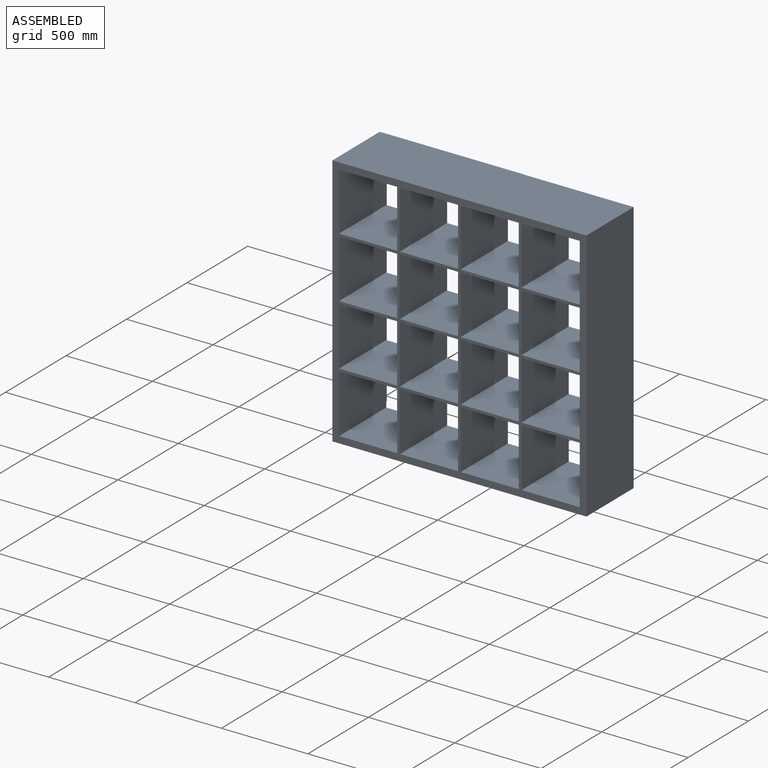
[diagram: assembled view]
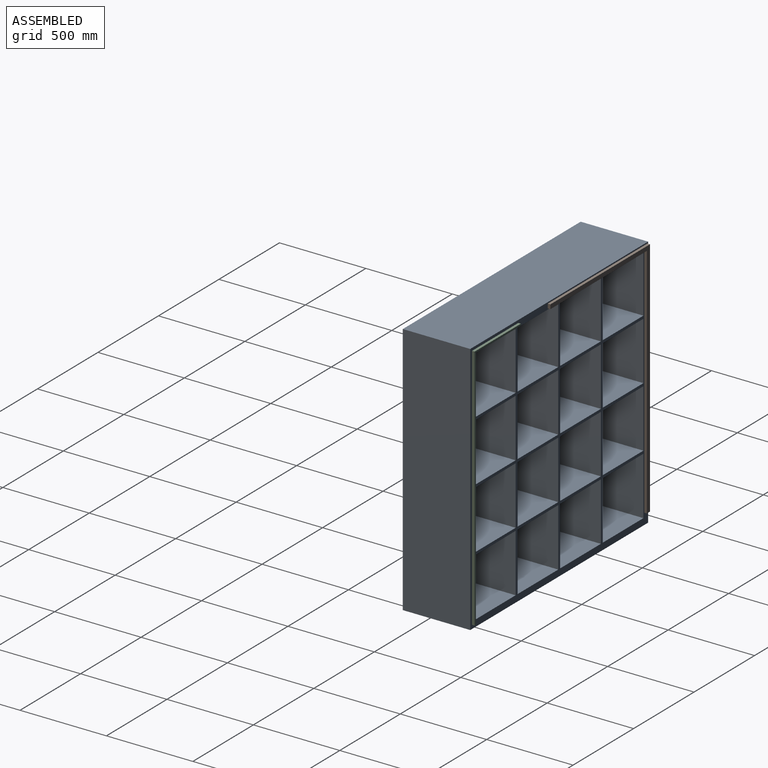
[diagram: assembled view, second angle]
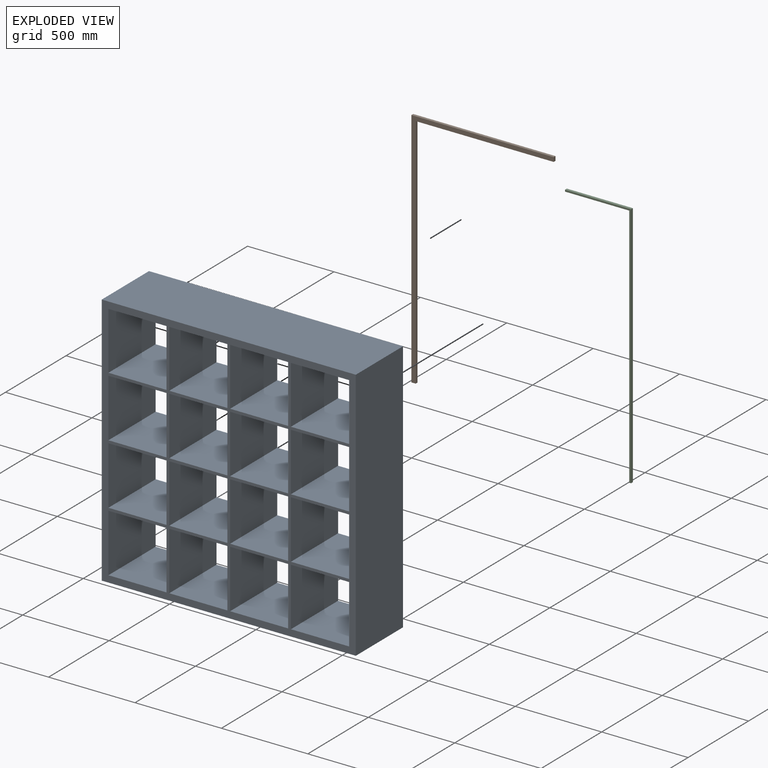
[diagram: exploded view]
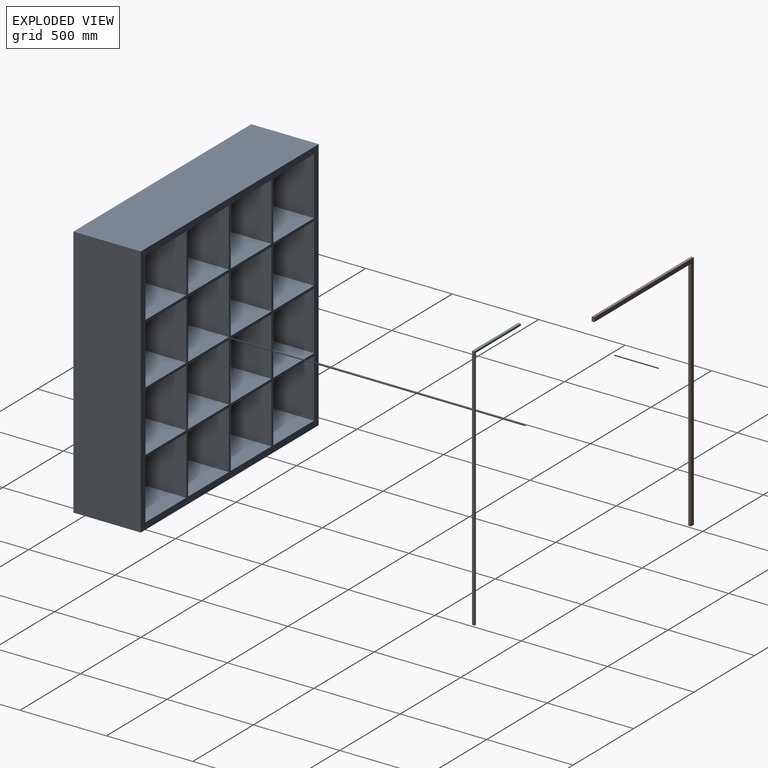
[diagram: exploded view, second angle]
ASSEMBLY  parts=3 mates=2
PART A: 70 faces, bbox 1470x390x1470 mm
  f0: plane 390x336mm, normal (0,0,1), area 131040mm2, adj f1,f67,f68,f69
  f1: plane 390x337mm, normal (1,0,0), area 131430mm2, adj f0,f2,f68,f69
  f2: plane 390x336mm, normal (0,0,-1), area 131040mm2, adj f1,f67,f68,f69
  f3: plane 390x336mm, normal (0,0,1), area 131040mm2, adj f4,f51,f68,f69
  f4: plane 390x337mm, normal (1,0,0), area 131430mm2, adj f3,f5,f68,f69
  f5: plane 390x336mm, normal (0,0,-1), area 131040mm2, adj f4,f51,f68,f69
  f6: plane 390x337mm, normal (1,0,0), area 131430mm2, adj f7,f52,f68,f69
  f7: plane 390x336mm, normal (0,0,-1), area 131040mm2, adj f6,f8,f68,f69
  f8: plane 390x337mm, normal (-1,0,0), area 131430mm2, adj f7,f52,f68,f69
  f9: plane 390x337mm, normal (1,0,0), area 131430mm2, adj f10,f53,f68,f69
  f10: plane 390x336mm, normal (0,0,-1), area 131040mm2, adj f9,f11,f68,f69
  f11: plane 390x337mm, normal (-1,0,0), area 131430mm2, adj f10,f53,f68,f69
  f12: plane 1470x390mm, normal (0,0,1), area 573300mm2, adj f13,f54,f68,f69
  f13: plane 1470x390mm, normal (-1,0,0), area 573300mm2, adj f12,f14,f68,f69
  f14: plane 1470x390mm, normal (0,0,-1), area 573300mm2, adj f13,f54,f68,f69
  f15: plane 390x336mm, normal (0,0,1), area 131040mm2, adj f16,f55,f68,f69
  f16: plane 390x334mm, normal (1,0,0), area 130260mm2, adj f15,f17,f68,f69
  f17: plane 390x336mm, normal (0,0,-1), area 131040mm2, adj f16,f55,f68,f69
  f18: plane 390x337mm, normal (0,0,-1), area 131430mm2, adj f19,f56,f68,f69
  f19: plane 390x337mm, normal (-1,0,0), area 131430mm2, adj f18,f20,f68,f69
  f20: plane 390x337mm, normal (0,0,1), area 131430mm2, adj f19,f56,f68,f69
  f21: plane 390x337mm, normal (0,0,-1), area 131430mm2, adj f22,f57,f68,f69
  f22: plane 390x337mm, normal (-1,0,0), area 131430mm2, adj f21,f23,f68,f69
  f23: plane 390x337mm, normal (0,0,1), area 131430mm2, adj f22,f57,f68,f69
  f24: plane 390x337mm, normal (0,0,-1), area 131430mm2, adj f25,f58,f68,f69
  f25: plane 390x337mm, normal (-1,0,0), area 131430mm2, adj f24,f26,f68,f69
  f26: plane 390x337mm, normal (0,0,1), area 131430mm2, adj f25,f58,f68,f69
  f27: plane 390x334mm, normal (1,0,0), area 130260mm2, adj f28,f59,f68,f69
  f28: plane 390x337mm, normal (0,0,-1), area 131430mm2, adj f27,f29,f68,f69
  f29: plane 390x334mm, normal (-1,0,0), area 130260mm2, adj f28,f59,f68,f69
  f30: plane 390x334mm, normal (1,0,0), area 130260mm2, adj f31,f60,f68,f69
  f31: plane 390x336mm, normal (0,0,-1), area 131040mm2, adj f30,f32,f68,f69
  f32: plane 390x334mm, normal (-1,0,0), area 130260mm2, adj f31,f60,f68,f69
  f33: plane 390x334mm, normal (1,0,0), area 130260mm2, adj f34,f61,f68,f69
  f34: plane 390x336mm, normal (0,0,-1), area 131040mm2, adj f33,f35,f68,f69
  f35: plane 390x334mm, normal (-1,0,0), area 130260mm2, adj f34,f61,f68,f69
  f36: plane 390x337mm, normal (1,0,0), area 131430mm2, adj f37,f62,f68,f69
  f37: plane 390x336mm, normal (0,0,-1), area 131040mm2, adj f36,f38,f68,f69
  f38: plane 390x337mm, normal (-1,0,0), area 131430mm2, adj f37,f62,f68,f69
  f39: plane 390x337mm, normal (1,0,0), area 131430mm2, adj f40,f63,f68,f69
  f40: plane 390x336mm, normal (0,0,-1), area 131040mm2, adj f39,f41,f68,f69
  f41: plane 390x337mm, normal (-1,0,0), area 131430mm2, adj f40,f63,f68,f69
  f42: plane 390x337mm, normal (1,0,0), area 131430mm2, adj f43,f64,f68,f69
  f43: plane 390x336mm, normal (0,0,-1), area 131040mm2, adj f42,f44,f68,f69
  f44: plane 390x337mm, normal (-1,0,0), area 131430mm2, adj f43,f64,f68,f69
  f45: plane 390x336mm, normal (0,0,1), area 131040mm2, adj f46,f65,f68,f69
  f46: plane 390x337mm, normal (1,0,0), area 131430mm2, adj f45,f47,f68,f69
  f47: plane 390x336mm, normal (0,0,-1), area 131040mm2, adj f46,f65,f68,f69
  f48: plane 390x336mm, normal (0,0,1), area 131040mm2, adj f49,f66,f68,f69
  f49: plane 390x337mm, normal (1,0,0), area 131430mm2, adj f48,f50,f68,f69
  f50: plane 390x336mm, normal (0,0,-1), area 131040mm2, adj f49,f66,f68,f69
  f51: plane 390x337mm, normal (-1,0,0), area 131430mm2, adj f3,f5,f68,f69
  f52: plane 390x336mm, normal (0,0,1), area 131040mm2, adj f6,f8,f68,f69
  f53: plane 390x336mm, normal (0,0,1), area 131040mm2, adj f9,f11,f68,f69
  f54: plane 1470x390mm, normal (1,0,0), area 573300mm2, adj f12,f14,f68,f69
  f55: plane 390x334mm, normal (-1,0,0), area 130260mm2, adj f15,f17,f68,f69
  f56: plane 390x337mm, normal (1,0,0), area 131430mm2, adj f18,f20,f68,f69
  f57: plane 390x337mm, normal (1,0,0), area 131430mm2, adj f21,f23,f68,f69
  f58: plane 390x337mm, normal (1,0,0), area 131430mm2, adj f24,f26,f68,f69
  f59: plane 390x337mm, normal (0,0,1), area 131430mm2, adj f27,f29,f68,f69
  f60: plane 390x336mm, normal (0,0,1), area 131040mm2, adj f30,f32,f68,f69
  f61: plane 390x336mm, normal (0,0,1), area 131040mm2, adj f33,f35,f68,f69
  f62: plane 390x336mm, normal (0,0,1), area 131040mm2, adj f36,f38,f68,f69
  f63: plane 390x336mm, normal (0,0,1), area 131040mm2, adj f39,f41,f68,f69
  f64: plane 390x336mm, normal (0,0,1), area 131040mm2, adj f42,f44,f68,f69
  f65: plane 390x337mm, normal (-1,0,0), area 131430mm2, adj f45,f47,f68,f69
  f66: plane 390x337mm, normal (-1,0,0), area 131430mm2, adj f48,f50,f68,f69
  f67: plane 390x337mm, normal (-1,0,0), area 131430mm2, adj f0,f2,f68,f69
  f68: plane 1470x1470mm, normal (0,-1,0), area 351875mm2, adj f0,f1,f2,f3,f4,f5,f6,f7
  f69: plane 1470x1470mm, normal (0,1,0), area 351875mm2, adj f0,f1,f2,f3,f4,f5,f6,f7
PART B: 8 faces, bbox 823.3x15x1398.3 mm
  f0: plane 1398.25x15mm, normal (-1,0,0), area 20973.8mm2, adj f1,f5,f6,f7
  f1: plane 25x15mm, normal (0,0,-1), area 375mm2, adj f0,f2,f6,f7
  f2: plane 1373.25x15mm, normal (1,0,0), area 20598.8mm2, adj f1,f3,f6,f7
  f3: plane 798.25x15mm, normal (0,0,-1), area 11973.7mm2, adj f2,f4,f6,f7
  f4: plane 25x15mm, normal (1,0,0), area 375mm2, adj f3,f5,f6,f7
  f5: plane 823.25x15mm, normal (0,0,1), area 12348.8mm2, adj f0,f4,f6,f7
  f6: plane 1398.25x823.25mm, normal (0,-1,0), area 54912.5mm2, adj f0,f1,f2,f3,f4,f5
  f7: plane 1398.25x823.25mm, normal (0,1,0), area 54912.5mm2, adj f0,f1,f2,f3,f4,f5
PART C: 8 faces, bbox 382.3x15x1433.3 mm
  f0: plane 1433.25x15mm, normal (1,0,0), area 21498.7mm2, adj f1,f5,f6,f7
  f1: plane 382.25x15mm, normal (0,0,1), area 5733.7mm2, adj f0,f2,f6,f7
  f2: plane 15x10mm, normal (-1,0,0), area 150mm2, adj f1,f3,f6,f7
  f3: plane 372.25x15mm, normal (0,0,-1), area 5583.7mm2, adj f2,f4,f6,f7
  f4: plane 1423.25x15mm, normal (-1,0,0), area 21348.7mm2, adj f3,f5,f6,f7
  f5: plane 15x10mm, normal (0,0,-1), area 150mm2, adj f0,f4,f6,f7
  f6: plane 1433.25x382.25mm, normal (0,-1,0), area 18055mm2, adj f0,f1,f2,f3,f4,f5
  f7: plane 1433.25x382.25mm, normal (0,1,0), area 18055mm2, adj f0,f1,f2,f3,f4,f5
PLACE A t=(-647.51,-728.73,227.9)mm
PLACE B t=(-189.86,-713.73,-389.19)mm
PLACE C t=(-1097.25,-713.73,739.02)mm
MATE planar A.f69 <-> B.f6  axis (0,1,0) through (-640.13,-728.73,387.93)mm
MATE planar C.f6 <-> A.f69  axis (0,-1,0) through (35.43,-728.73,537.2)mm
